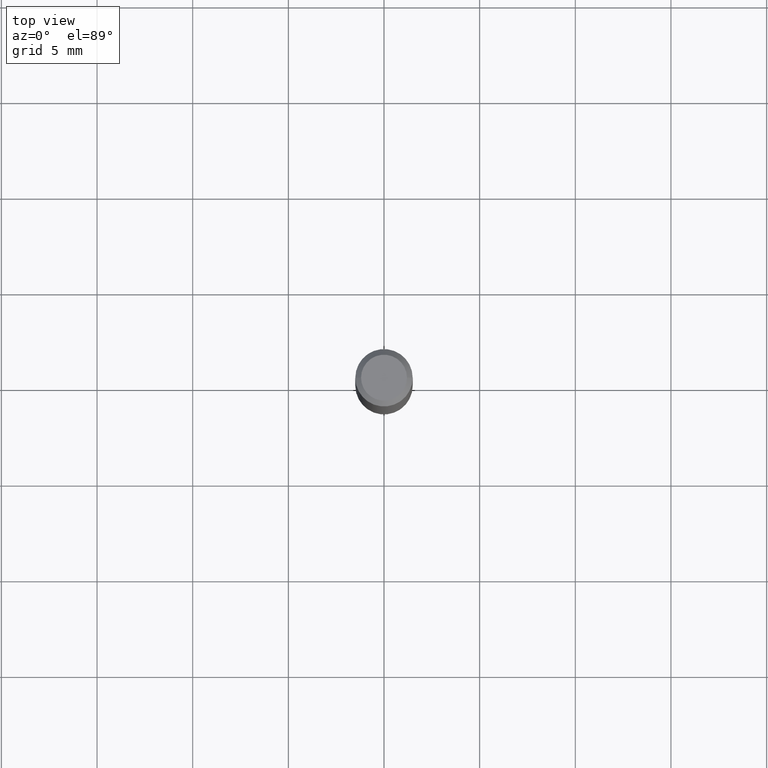
[diagram: clean part render]
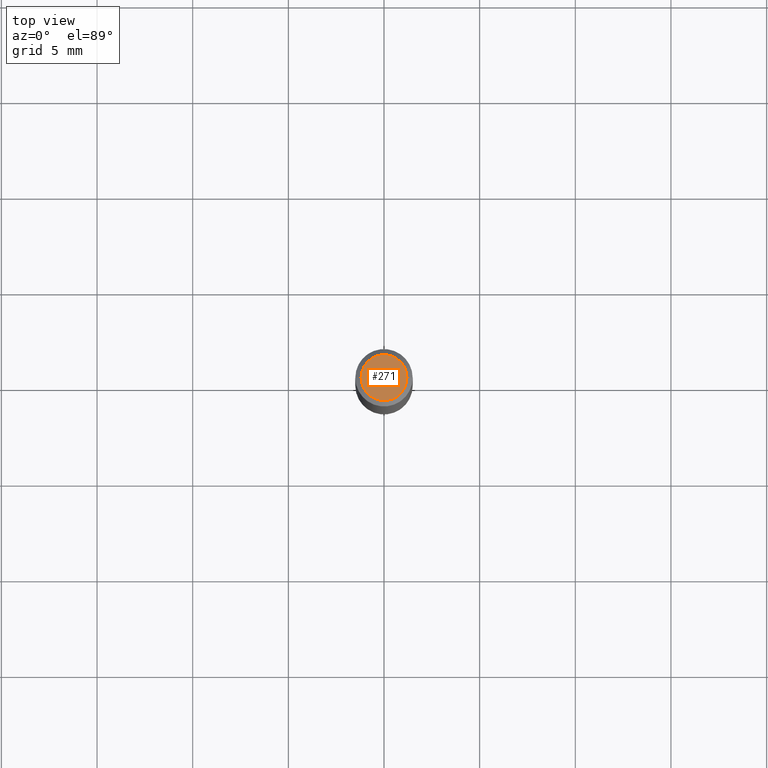
[diagram: same view with one face highlighted and labeled with its STEP entity id]
A machine part, top view. The second image highlights one B-rep face of the part: STEP entity #271.
In plain terms, the highlighted planar face has unit normal (0, -0, -1).
Its self-contained STEP definition (entity closure, byte-faithful):
#26 = DIRECTION ( 'NONE',  ( 1.000000000000000000, -6.982962677686266711E-15, 4.876185090822587894E-29 ) ) ;
#47 = AXIS2_PLACEMENT_3D ( 'NONE', #444, #103, #414 ) ;
#63 = CARTESIAN_POINT ( 'NONE',  ( 0.04724000000000000421, -3.852183633974369345E-16, -3.380025165621689721E-19 ) ) ;
#88 = DIRECTION ( 'NONE',  ( -2.445468806185136597E-29, 3.491481338843145583E-15, 1.000000000000000000 ) ) ;
#92 = AXIS2_PLACEMENT_3D ( 'NONE', #164, #127, #26 ) ;
#103 = DIRECTION ( 'NONE',  ( 2.438088387897960049E-29, -3.491481338843145188E-15, -1.000000000000000000 ) ) ;
#127 = DIRECTION ( 'NONE',  ( -2.445468806185136597E-29, 3.491481338843145583E-15, 1.000000000000000000 ) ) ;
#138 = PLANE ( 'NONE',  #47 ) ;
#164 = CARTESIAN_POINT ( 'NONE',  ( 8.265746106709734507E-48, -1.180129479067563789E-33, -3.380025165646692144E-19 ) ) ;
#170 = FACE_OUTER_BOUND ( 'NONE', #339, .T. ) ;
#205 = CIRCLE ( 'NONE', #92, 0.04724000000000000421 ) ;
#208 = EDGE_CURVE ( 'NONE', #301, #417, #205, .T. ) ;
#257 = ORIENTED_EDGE ( 'NONE', *, *, #208, .T. ) ;
#271 = ADVANCED_FACE ( 'NONE', ( #170 ), #138, .F. ) ;
#301 = VERTEX_POINT ( 'NONE', #63 ) ;
#309 = DIRECTION ( 'NONE',  ( 1.000000000000000000, -6.982962677686266711E-15, 4.876185090822587894E-29 ) ) ;
#338 = AXIS2_PLACEMENT_3D ( 'NONE', #489, #88, #309 ) ;
#339 = EDGE_LOOP ( 'NONE', ( #447, #257 ) ) ;
#366 = CIRCLE ( 'NONE', #338, 0.04724000000000000421 ) ;
#414 = DIRECTION ( 'NONE',  ( -1.000000000000000000, 6.982962677686265922E-15, -4.876176775795935793E-29 ) ) ;
#417 = VERTEX_POINT ( 'NONE', #468 ) ;
#435 = EDGE_CURVE ( 'NONE', #417, #301, #366, .T. ) ;
#444 = CARTESIAN_POINT ( 'NONE',  ( 4.132873053354867254E-48, -5.900647395337818946E-34, -1.690012582823346072E-19 ) ) ;
#447 = ORIENTED_EDGE ( 'NONE', *, *, #435, .T. ) ;
#468 = CARTESIAN_POINT ( 'NONE',  ( -0.04724000000000000421, 3.504923541997677355E-16, -3.380025165670481712E-19 ) ) ;
#489 = CARTESIAN_POINT ( 'NONE',  ( 8.265746106709734507E-48, -1.180129479067563789E-33, -3.380025165646692144E-19 ) ) ;